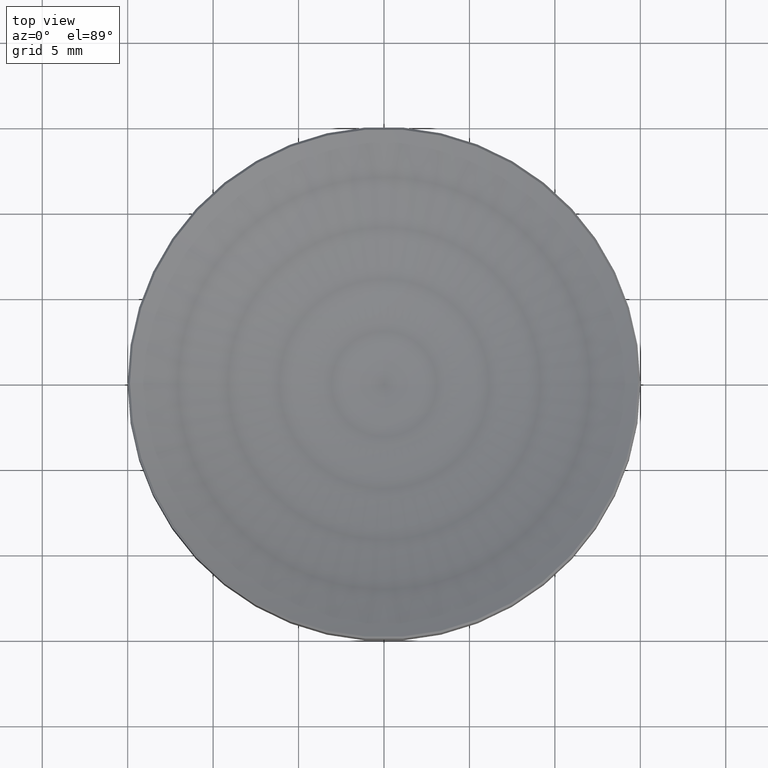
[diagram: clean part render]
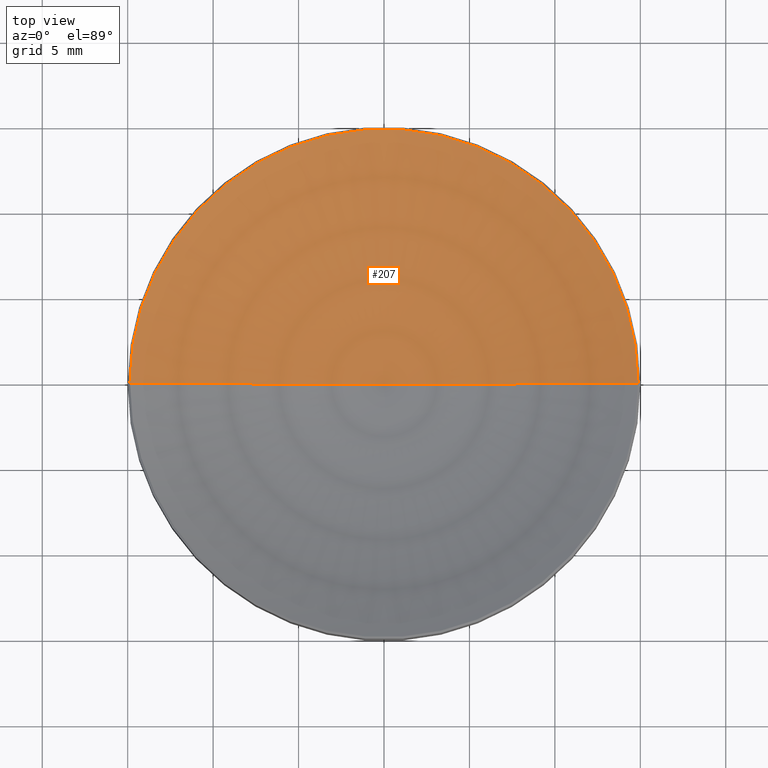
[diagram: same view with one face highlighted and labeled with its STEP entity id]
A machine part, top view. The second image highlights one B-rep face of the part: STEP entity #207.
In plain terms, the highlighted toroidal blend (fillet) surface has major radius 0.0027 mm and minor (blend) radius 32.5 mm.
Its self-contained STEP definition (entity closure, byte-faithful):
#3 = DIRECTION ( 'NONE',  ( -1.000000000000000000, 1.224646799147353454E-16, 0.000000000000000000 ) ) ;
#11 = DIRECTION ( 'NONE',  ( 1.000000000000000000, 0.000000000000000000, 0.000000000000000000 ) ) ;
#13 = AXIS2_PLACEMENT_3D ( 'NONE', #121, #170, #190 ) ;
#21 = EDGE_LOOP ( 'NONE', ( #239, #203, #184 ) ) ;
#29 = TOROIDAL_SURFACE ( 'NONE', #140, -0.002703305825795844497, 32.50000000000000000 ) ;
#52 = FACE_OUTER_BOUND ( 'NONE', #21, .T. ) ;
#55 = CARTESIAN_POINT ( 'NONE',  ( -0.002703305825795844497, 0.000000000000000000, 34.99999988757134872 ) ) ;
#60 = DIRECTION ( 'NONE',  ( -0.000000000000000000, -0.000000000000000000, 1.000000000000000000 ) ) ;
#71 = DIRECTION ( 'NONE',  ( 0.000000000000000000, 0.000000000000000000, -1.000000000000000000 ) ) ;
#84 = VERTEX_POINT ( 'NONE', #211 ) ;
#102 = EDGE_CURVE ( 'NONE', #118, #84, #193, .T. ) ;
#109 = EDGE_CURVE ( 'NONE', #143, #84, #212, .T. ) ;
#118 = VERTEX_POINT ( 'NONE', #210 ) ;
#121 = CARTESIAN_POINT ( 'NONE',  ( 0.000000000000000000, 0.000000000000000000, 6.101796822796101694 ) ) ;
#129 = CARTESIAN_POINT ( 'NONE',  ( 14.86820317720390072, 0.000000000000000000, 6.101796822796101694 ) ) ;
#140 = AXIS2_PLACEMENT_3D ( 'NONE', #233, #60, #11 ) ;
#143 = VERTEX_POINT ( 'NONE', #129 ) ;
#170 = DIRECTION ( 'NONE',  ( -0.000000000000000000, -0.000000000000000000, 1.000000000000000000 ) ) ;
#175 = DIRECTION ( 'NONE',  ( 1.224646799147353207E-16, 1.000000000000000000, 0.000000000000000000 ) ) ;
#184 = ORIENTED_EDGE ( 'NONE', *, *, #109, .T. ) ;
#190 = DIRECTION ( 'NONE',  ( 1.000000000000000000, 0.000000000000000000, 0.000000000000000000 ) ) ;
#193 = CIRCLE ( 'NONE', #204, 32.50000000000000000 ) ;
#196 = EDGE_CURVE ( 'NONE', #118, #143, #224, .T. ) ;
#203 = ORIENTED_EDGE ( 'NONE', *, *, #196, .T. ) ;
#204 = AXIS2_PLACEMENT_3D ( 'NONE', #230, #175, #3 ) ;
#207 = ADVANCED_FACE ( 'NONE', ( #52 ), #29, .F. ) ;
#210 = CARTESIAN_POINT ( 'NONE',  ( 0.000000000000000000, 0.000000000000000000, 2.500000000000000000 ) ) ;
#211 = CARTESIAN_POINT ( 'NONE',  ( -14.86820317720390072, 1.820829743003526459E-15, 6.101796822796101694 ) ) ;
#212 = CIRCLE ( 'NONE', #13, 14.86820317720389895 ) ;
#224 = CIRCLE ( 'NONE', #260, 32.50000000000000000 ) ;
#230 = CARTESIAN_POINT ( 'NONE',  ( 0.002703305825795844497, -3.310594826677273624E-19, 34.99999988757134872 ) ) ;
#233 = CARTESIAN_POINT ( 'NONE',  ( 0.000000000000000000, 0.000000000000000000, 34.99999988757134872 ) ) ;
#239 = ORIENTED_EDGE ( 'NONE', *, *, #102, .F. ) ;
#255 = DIRECTION ( 'NONE',  ( 0.000000000000000000, -1.000000000000000000, 0.000000000000000000 ) ) ;
#260 = AXIS2_PLACEMENT_3D ( 'NONE', #55, #255, #71 ) ;